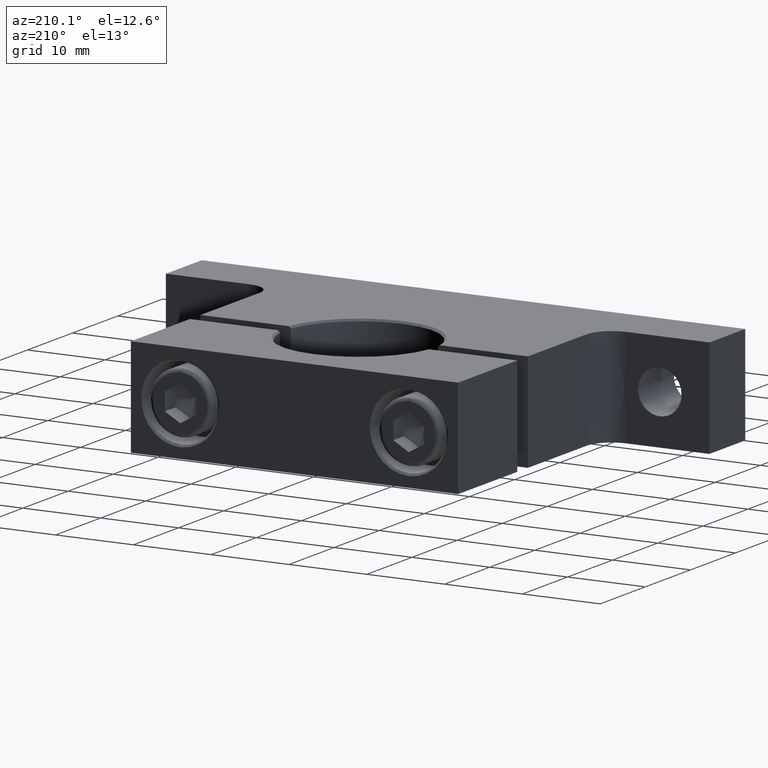
[diagram: clean part render]
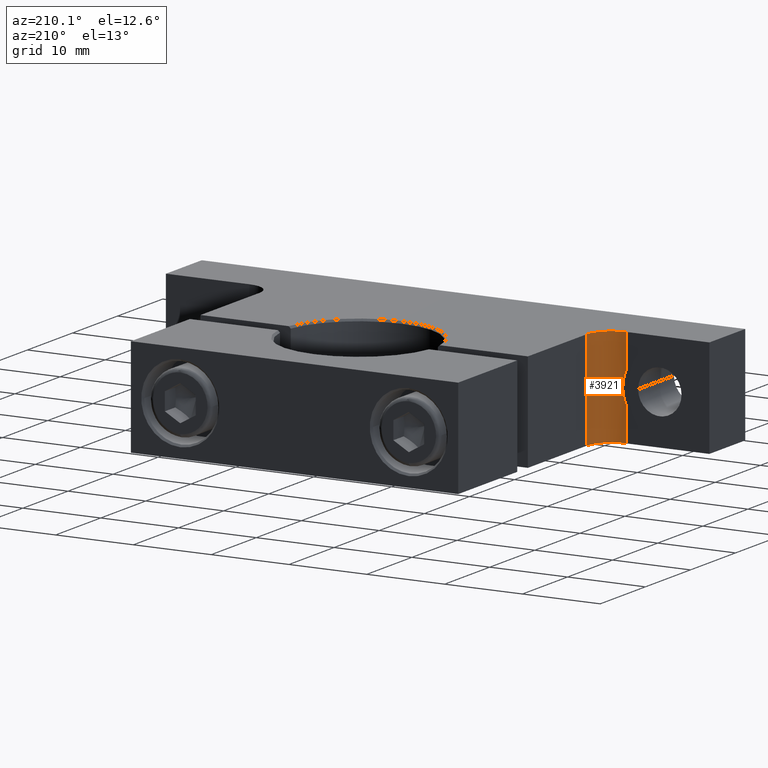
[diagram: same view with one face highlighted and labeled with its STEP entity id]
A machine part, auxiliary view. The second image highlights one B-rep face of the part: STEP entity #3921.
In plain terms, the highlighted cylindrical surface (edge-blend (fillet) strip) has radius 3.175 mm, axis along (0, 0, 1).
Its self-contained STEP definition (entity closure, byte-faithful):
#108 = CARTESIAN_POINT ( 'NONE',  ( -0.9366289004281056500, -0.6864233114237218200, 0.01318406267490350300 ) ) ;
#451 = DIRECTION ( 'NONE',  ( -0.0000000000000000000, -0.0000000000000000000, -1.000000000000000000 ) ) ;
#472 = CARTESIAN_POINT ( 'NONE',  ( -0.8280000000000000700, -0.5625000000000001100, -0.2500000000000000600 ) ) ;
#497 = CARTESIAN_POINT ( 'NONE',  ( -0.9379809118231554600, -0.6866249215704721700, -0.02608039365331374400 ) ) ;
#620 = DIRECTION ( 'NONE',  ( 0.0000000000000000000, 0.0000000000000000000, 1.000000000000000000 ) ) ;
#727 = CIRCLE ( 'NONE', #3467, 0.1250000000000000300 ) ;
#729 = CARTESIAN_POINT ( 'NONE',  ( -0.9530000000000000700, -0.5625000000000001100, -0.2500000000000000600 ) ) ;
#887 = CARTESIAN_POINT ( 'NONE',  ( -0.9475776916314584400, -0.6875000000000001100, -0.06452373727849665400 ) ) ;
#907 = CARTESIAN_POINT ( 'NONE',  ( -0.9530000000000000700, -0.6875000000000001100, -0.2500000000000000600 ) ) ;
#1019 = B_SPLINE_CURVE_WITH_KNOTS ( 'NONE', 3,
 ( #4689, #1244, #1997, #2372, #108, #2765, #497, #3150, #887, #3528 ),
 .UNSPECIFIED., .F., .F.,
 ( 4, 2, 2, 2, 4 ),
 ( 4.336808689942017700E-019, 0.0009964329765825583100, 0.001992865953165116600, 0.002989298929747674700, 0.003985731906330232400 ),
 .UNSPECIFIED. ) ;
#1028 = AXIS2_PLACEMENT_3D ( 'NONE', #1778, #620, #2524 ) ;
#1103 = DIRECTION ( 'NONE',  ( 0.0000000000000000000, 0.0000000000000000000, 1.000000000000000000 ) ) ;
#1108 = DIRECTION ( 'NONE',  ( 1.000000000000000000, 0.0000000000000000000, 0.0000000000000000000 ) ) ;
#1132 = LINE ( 'NONE', #4163, #2136 ) ;
#1145 = VERTEX_POINT ( 'NONE', #907 ) ;
#1234 = EDGE_CURVE ( 'NONE', #2964, #4123, #1132, .T. ) ;
#1244 = CARTESIAN_POINT ( 'NONE',  ( -0.9475767901671046100, -0.6875000000000001100, 0.06452172424461548300 ) ) ;
#1309 = ORIENTED_EDGE ( 'NONE', *, *, #1936, .F. ) ;
#1636 = VECTOR ( 'NONE', #4022, 39.37007874015748100 ) ;
#1710 = EDGE_CURVE ( 'NONE', #4701, #2790, #1019, .T. ) ;
#1754 = ORIENTED_EDGE ( 'NONE', *, *, #1710, .F. ) ;
#1778 = CARTESIAN_POINT ( 'NONE',  ( -0.9530000000000000700, -0.5625000000000001100, 0.0000000000000000000 ) ) ;
#1863 = CARTESIAN_POINT ( 'NONE',  ( -0.8280000000000000700, -0.5625000000000001100, 0.2500000000000000600 ) ) ;
#1936 = EDGE_CURVE ( 'NONE', #2790, #1145, #2385, .T. ) ;
#1997 = CARTESIAN_POINT ( 'NONE',  ( -0.9435241109725849300, -0.6871707267349580500, 0.05206507355211654300 ) ) ;
#2070 = ORIENTED_EDGE ( 'NONE', *, *, #4225, .F. ) ;
#2136 = VECTOR ( 'NONE', #1103, 39.37007874015748100 ) ;
#2184 = DIRECTION ( 'NONE',  ( -0.0000000000000000000, 0.0000000000000000000, -1.000000000000000000 ) ) ;
#2275 = VECTOR ( 'NONE', #2184, 39.37007874015748100 ) ;
#2372 = CARTESIAN_POINT ( 'NONE',  ( -0.9380431789787422300, -0.6866324940634822600, 0.02647657241587094200 ) ) ;
#2385 = LINE ( 'NONE', #3310, #2275 ) ;
#2524 = DIRECTION ( 'NONE',  ( 1.000000000000000000, 0.0000000000000000000, 0.0000000000000000000 ) ) ;
#2719 = CARTESIAN_POINT ( 'NONE',  ( -0.9530000000000000700, -0.5625000000000001100, 0.2500000000000000600 ) ) ;
#2765 = CARTESIAN_POINT ( 'NONE',  ( -0.9366211160520127000, -0.6864222828067335600, -0.01307288673970894700 ) ) ;
#2790 = VERTEX_POINT ( 'NONE', #3892 ) ;
#2800 = AXIS2_PLACEMENT_3D ( 'NONE', #729, #3369, #1108 ) ;
#2846 = CARTESIAN_POINT ( 'NONE',  ( -0.9530000000000000700, -0.6875000000000001100, 0.0000000000000000000 ) ) ;
#2871 = EDGE_LOOP ( 'NONE', ( #3208, #2070, #3365, #4167, #1309, #1754 ) ) ;
#2964 = VERTEX_POINT ( 'NONE', #472 ) ;
#3101 = DIRECTION ( 'NONE',  ( 1.000000000000000000, 0.0000000000000000000, 0.0000000000000000000 ) ) ;
#3150 = CARTESIAN_POINT ( 'NONE',  ( -0.9434567130116572300, -0.6871655318762883700, -0.05185343357000140500 ) ) ;
#3208 = ORIENTED_EDGE ( 'NONE', *, *, #4837, .F. ) ;
#3230 = CARTESIAN_POINT ( 'NONE',  ( -0.9530000000000000700, -0.6875000000000001100, 0.2500000000000000600 ) ) ;
#3310 = CARTESIAN_POINT ( 'NONE',  ( -0.9530000000000000700, -0.6875000000000001100, 0.0000000000000000000 ) ) ;
#3365 = ORIENTED_EDGE ( 'NONE', *, *, #1234, .F. ) ;
#3369 = DIRECTION ( 'NONE',  ( 0.0000000000000000000, 0.0000000000000000000, 1.000000000000000000 ) ) ;
#3444 = VERTEX_POINT ( 'NONE', #3230 ) ;
#3467 = AXIS2_PLACEMENT_3D ( 'NONE', #2719, #451, #3101 ) ;
#3528 = CARTESIAN_POINT ( 'NONE',  ( -0.9530000000000000700, -0.6875000000000001100, -0.07663213669864600600 ) ) ;
#3637 = CIRCLE ( 'NONE', #2800, 0.1250000000000000300 ) ;
#3649 = LINE ( 'NONE', #2846, #1636 ) ;
#3892 = CARTESIAN_POINT ( 'NONE',  ( -0.9530000000000000700, -0.6875000000000001100, -0.07663213669864600600 ) ) ;
#3921 = ADVANCED_FACE ( 'NONE', ( #4107 ), #4908, .F. ) ;
#4022 = DIRECTION ( 'NONE',  ( -0.0000000000000000000, 0.0000000000000000000, -1.000000000000000000 ) ) ;
#4094 = EDGE_CURVE ( 'NONE', #1145, #2964, #3637, .T. ) ;
#4107 = FACE_OUTER_BOUND ( 'NONE', #2871, .T. ) ;
#4123 = VERTEX_POINT ( 'NONE', #1863 ) ;
#4163 = CARTESIAN_POINT ( 'NONE',  ( -0.8280000000000000700, -0.5625000000000001100, 0.0000000000000000000 ) ) ;
#4167 = ORIENTED_EDGE ( 'NONE', *, *, #4094, .F. ) ;
#4225 = EDGE_CURVE ( 'NONE', #4123, #3444, #727, .T. ) ;
#4689 = CARTESIAN_POINT ( 'NONE',  ( -0.9530000000000000700, -0.6875000000000001100, 0.07663213669864604700 ) ) ;
#4701 = VERTEX_POINT ( 'NONE', #4751 ) ;
#4751 = CARTESIAN_POINT ( 'NONE',  ( -0.9530000000000000700, -0.6875000000000001100, 0.07663213669864604700 ) ) ;
#4837 = EDGE_CURVE ( 'NONE', #3444, #4701, #3649, .T. ) ;
#4908 = CYLINDRICAL_SURFACE ( 'NONE', #1028, 0.1250000000000000300 ) ;